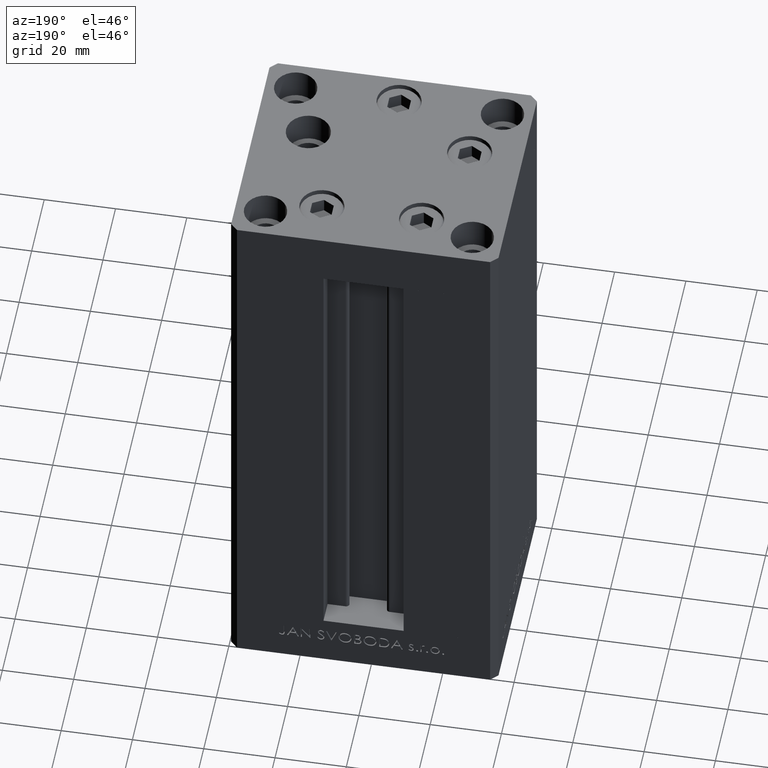
[diagram: clean part render]
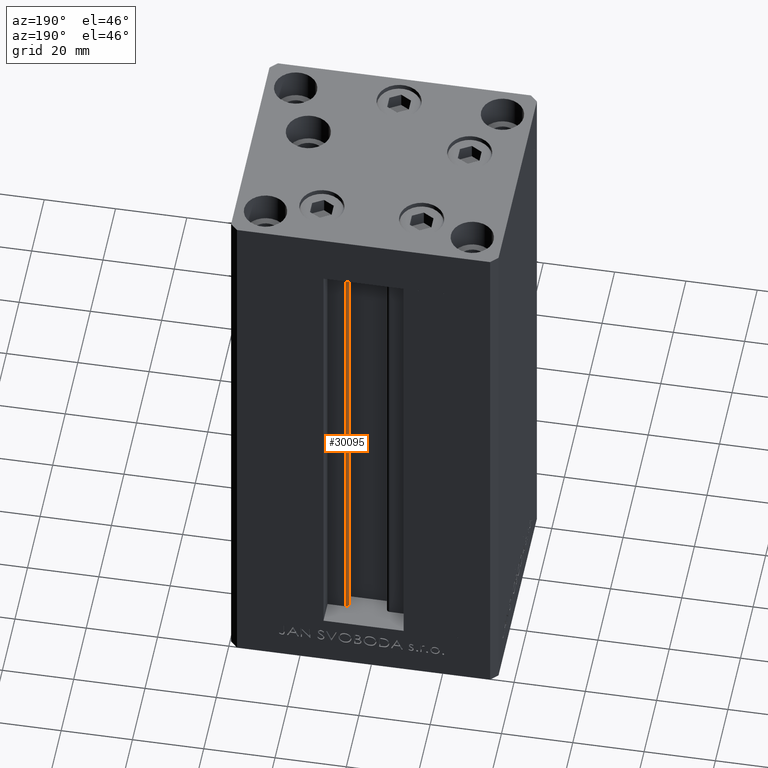
[diagram: same view with one face highlighted and labeled with its STEP entity id]
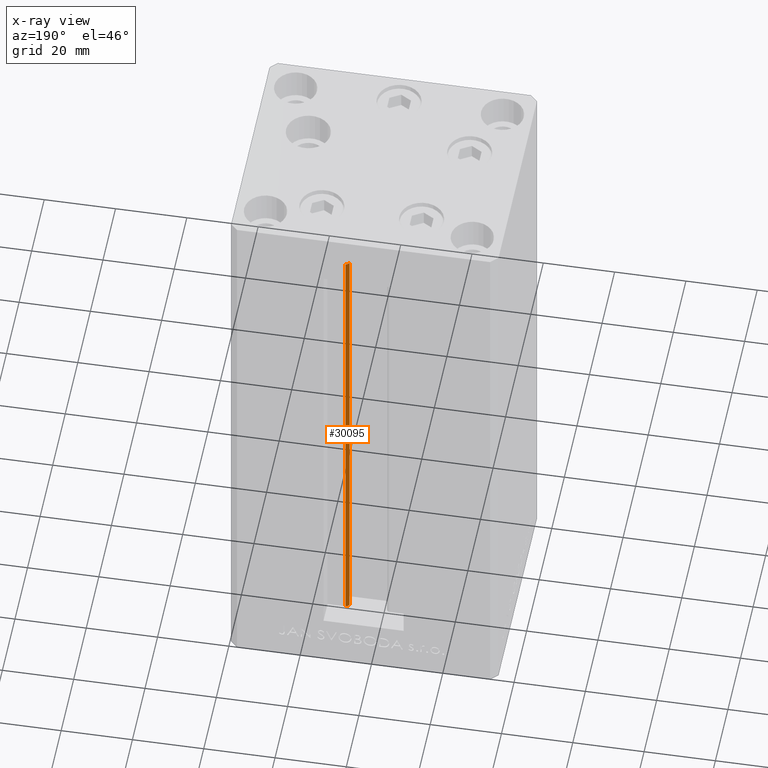
[diagram: x-ray of the same camera — body ghosted, the highlighted face saturated]
A machine part, auxiliary view. The second image highlights one B-rep face of the part: STEP entity #30095.
The next image is the same camera in x-ray: the body ghosted, the highlighted face saturated — about 0% of this face is hidden behind the body in this view.
In plain terms, the highlighted cylindrical surface (edge-blend (fillet) strip) has radius 0.9333 mm, axis along (0, 0, 1).
Its self-contained STEP definition (entity closure, byte-faithful):
#80 = EDGE_LOOP ( 'NONE', ( #47961, #45138, #15101, #3780 ) ) ;
#2438 = FACE_OUTER_BOUND ( 'NONE', #80, .T. ) ;
#3780 = ORIENTED_EDGE ( 'NONE', *, *, #10081, .T. ) ;
#5631 = DIRECTION ( 'NONE',  ( 1.000000000000000000, 0.000000000000000000, 0.000000000000000000 ) ) ;
#6224 = CARTESIAN_POINT ( 'NONE',  ( 5.375042956467947164, 24.59999999999899245, 0.000000000000000000 ) ) ;
#7226 = CIRCLE ( 'NONE', #36451, 0.9333333333340008142 ) ;
#8836 = VERTEX_POINT ( 'NONE', #30884 ) ;
#10081 = EDGE_CURVE ( 'NONE', #29349, #40148, #12676, .T. ) ;
#12468 = VERTEX_POINT ( 'NONE', #38100 ) ;
#12676 = CIRCLE ( 'NONE', #17397, 0.9333333333340008142 ) ;
#12844 = VECTOR ( 'NONE', #21295, 1000.000000000000000 ) ;
#15101 = ORIENTED_EDGE ( 'NONE', *, *, #36081, .T. ) ;
#17266 = CYLINDRICAL_SURFACE ( 'NONE', #48162, 0.9333333333340008142 ) ;
#17397 = AXIS2_PLACEMENT_3D ( 'NONE', #25178, #25422, #24945 ) ;
#20449 = DIRECTION ( 'NONE',  ( -0.000000000000000000, -0.000000000000000000, -1.000000000000000000 ) ) ;
#21295 = DIRECTION ( 'NONE',  ( -0.000000000000000000, -0.000000000000000000, 1.000000000000000000 ) ) ;
#21706 = CARTESIAN_POINT ( 'NONE',  ( 6.183333333334001480, 25.06666666666599141, 0.000000000000000000 ) ) ;
#22796 = DIRECTION ( 'NONE',  ( -0.000000000000000000, -0.000000000000000000, 1.000000000000000000 ) ) ;
#22922 = VECTOR ( 'NONE', #22796, 1000.000000000000000 ) ;
#24894 = CARTESIAN_POINT ( 'NONE',  ( 6.183333333334001480, 25.06666666666599141, 0.000000000000000000 ) ) ;
#24945 = DIRECTION ( 'NONE',  ( 1.000000000000000000, 0.000000000000000000, 0.000000000000000000 ) ) ;
#25178 = CARTESIAN_POINT ( 'NONE',  ( 6.183333333334001480, 25.06666666666599141, 136.0000000000000000 ) ) ;
#25422 = DIRECTION ( 'NONE',  ( 0.000000000000000000, 0.000000000000000000, -1.000000000000000000 ) ) ;
#26986 = CARTESIAN_POINT ( 'NONE',  ( 6.183333333334001480, 25.99999999999999289, 0.000000000000000000 ) ) ;
#27279 = CARTESIAN_POINT ( 'NONE',  ( 5.375042956467948052, 24.59999999999899245, 136.0000000000000000 ) ) ;
#29349 = VERTEX_POINT ( 'NONE', #27279 ) ;
#30095 = ADVANCED_FACE ( 'NONE', ( #2438 ), #17266, .T. ) ;
#30381 = EDGE_CURVE ( 'NONE', #8836, #40148, #30699, .T. ) ;
#30699 = LINE ( 'NONE', #26986, #22922 ) ;
#30884 = CARTESIAN_POINT ( 'NONE',  ( 6.183333333334001480, 25.99999999999999289, 0.000000000000000000 ) ) ;
#32826 = DIRECTION ( 'NONE',  ( 1.000000000000000000, 0.000000000000000000, 0.000000000000000000 ) ) ;
#34275 = EDGE_CURVE ( 'NONE', #12468, #8836, #7226, .T. ) ;
#36081 = EDGE_CURVE ( 'NONE', #12468, #29349, #40087, .T. ) ;
#36451 = AXIS2_PLACEMENT_3D ( 'NONE', #24894, #20449, #5631 ) ;
#38100 = CARTESIAN_POINT ( 'NONE',  ( 5.375042956467947164, 24.59999999999899245, 0.000000000000000000 ) ) ;
#40087 = LINE ( 'NONE', #6224, #12844 ) ;
#40148 = VERTEX_POINT ( 'NONE', #45435 ) ;
#45138 = ORIENTED_EDGE ( 'NONE', *, *, #34275, .F. ) ;
#45435 = CARTESIAN_POINT ( 'NONE',  ( 6.183333333334001480, 25.99999999999999289, 136.0000000000000000 ) ) ;
#47709 = DIRECTION ( 'NONE',  ( -0.000000000000000000, -0.000000000000000000, 1.000000000000000000 ) ) ;
#47961 = ORIENTED_EDGE ( 'NONE', *, *, #30381, .F. ) ;
#48162 = AXIS2_PLACEMENT_3D ( 'NONE', #21706, #47709, #32826 ) ;